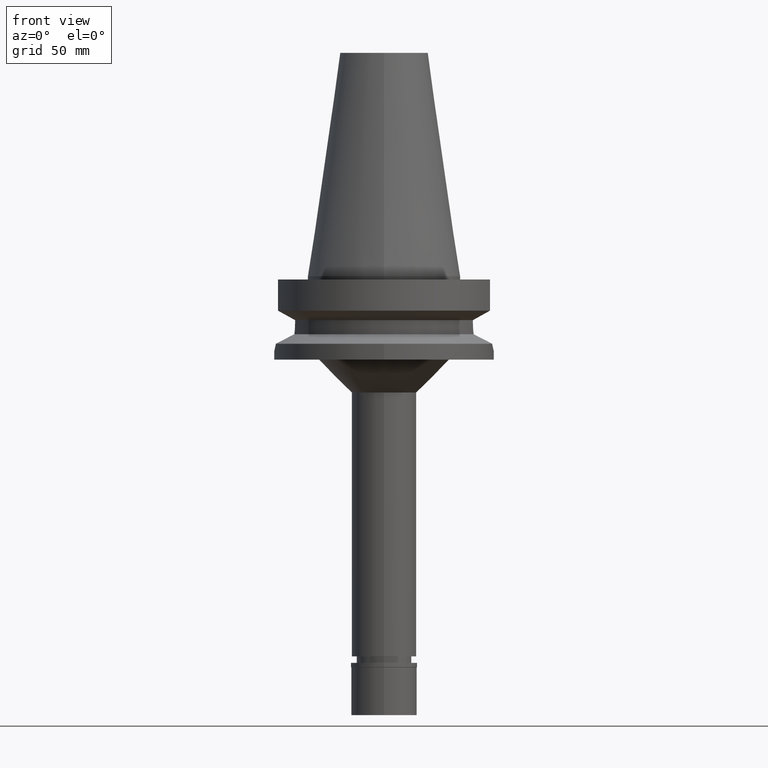
[diagram: clean part render]
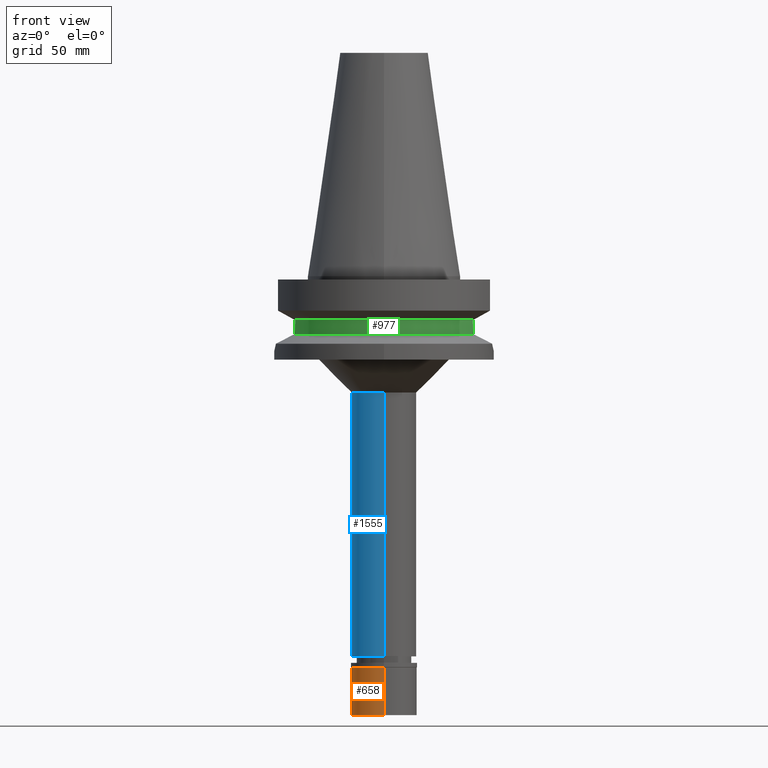
[diagram: same view with three faces highlighted in distinct colors, each labeled with its STEP entity id]
A machine part, front view with three faces highlighted in distinct colors.
Their STEP definitions:

[orange] entity #658 — the highlighted cylindrical surface (edge-blend (fillet) strip) has radius 15 mm, axis along (0, 0, -1).
#194 = CARTESIAN_POINT ( 'NONE',  ( 0.0000000000000000000, 15.00000000000000000, -2.100000000000000089 ) ) ;
#400 = EDGE_CURVE ( 'NONE', #1567, #2639, #2686, .T. ) ;
#439 = ORIENTED_EDGE ( 'NONE', *, *, #2537, .T. ) ;
#511 = AXIS2_PLACEMENT_3D ( 'NONE', #2376, #643, #1859 ) ;
#569 = CARTESIAN_POINT ( 'NONE',  ( 0.0000000000000000000, 15.00000000000000000, -2.100000000000000089 ) ) ;
#618 = CIRCLE ( 'NONE', #1018, 15.00000000000000000 ) ;
#623 = EDGE_CURVE ( 'NONE', #1567, #1048, #618, .T. ) ;
#635 = DIRECTION ( 'NONE',  ( 0.0000000000000000000, 0.0000000000000000000, -1.000000000000000000 ) ) ;
#643 = DIRECTION ( 'NONE',  ( 0.0000000000000000000, 0.0000000000000000000, 1.000000000000000000 ) ) ;
#658 = ADVANCED_FACE ( 'NONE', ( #2590 ), #1843, .T. ) ;
#817 = AXIS2_PLACEMENT_3D ( 'NONE', #2829, #635, #1607 ) ;
#910 = VECTOR ( 'NONE', #1081, 1000.000000000000000 ) ;
#1018 = AXIS2_PLACEMENT_3D ( 'NONE', #1069, #2798, #1328 ) ;
#1019 = EDGE_CURVE ( 'NONE', #2525, #2639, #2238, .T. ) ;
#1048 = VERTEX_POINT ( 'NONE', #194 ) ;
#1069 = CARTESIAN_POINT ( 'NONE',  ( 0.0000000000000000000, 0.0000000000000000000, -2.100000000000000089 ) ) ;
#1081 = DIRECTION ( 'NONE',  ( 0.0000000000000000000, 0.0000000000000000000, -1.000000000000000000 ) ) ;
#1301 = CARTESIAN_POINT ( 'NONE',  ( 0.0000000000000000000, 15.00000000000000000, -23.80000000000000071 ) ) ;
#1311 = ORIENTED_EDGE ( 'NONE', *, *, #400, .F. ) ;
#1328 = DIRECTION ( 'NONE',  ( 0.0000000000000000000, -1.000000000000000000, 0.0000000000000000000 ) ) ;
#1464 = CARTESIAN_POINT ( 'NONE',  ( 0.0000000000000000000, -15.00000000000000000, -2.100000000000000089 ) ) ;
#1567 = VERTEX_POINT ( 'NONE', #1582 ) ;
#1582 = CARTESIAN_POINT ( 'NONE',  ( 0.0000000000000000000, -15.00000000000000000, -2.100000000000000089 ) ) ;
#1607 = DIRECTION ( 'NONE',  ( 0.0000000000000000000, -1.000000000000000000, 0.0000000000000000000 ) ) ;
#1843 = CYLINDRICAL_SURFACE ( 'NONE', #817, 15.00000000000000000 ) ;
#1859 = DIRECTION ( 'NONE',  ( 0.0000000000000000000, 1.000000000000000000, 0.0000000000000000000 ) ) ;
#2041 = LINE ( 'NONE', #569, #910 ) ;
#2238 = CIRCLE ( 'NONE', #511, 15.00000000000000000 ) ;
#2270 = ORIENTED_EDGE ( 'NONE', *, *, #623, .T. ) ;
#2376 = CARTESIAN_POINT ( 'NONE',  ( 0.0000000000000000000, 0.0000000000000000000, -23.80000000000000071 ) ) ;
#2465 = DIRECTION ( 'NONE',  ( 0.0000000000000000000, 0.0000000000000000000, -1.000000000000000000 ) ) ;
#2525 = VERTEX_POINT ( 'NONE', #1301 ) ;
#2537 = EDGE_CURVE ( 'NONE', #1048, #2525, #2041, .T. ) ;
#2590 = FACE_OUTER_BOUND ( 'NONE', #2679, .T. ) ;
#2639 = VERTEX_POINT ( 'NONE', #2766 ) ;
#2679 = EDGE_LOOP ( 'NONE', ( #2808, #1311, #2270, #439 ) ) ;
#2686 = LINE ( 'NONE', #1464, #2765 ) ;
#2765 = VECTOR ( 'NONE', #2465, 1000.000000000000000 ) ;
#2766 = CARTESIAN_POINT ( 'NONE',  ( 0.0000000000000000000, -15.00000000000000000, -23.80000000000000071 ) ) ;
#2798 = DIRECTION ( 'NONE',  ( 0.0000000000000000000, 0.0000000000000000000, -1.000000000000000000 ) ) ;
#2808 = ORIENTED_EDGE ( 'NONE', *, *, #1019, .T. ) ;
#2829 = CARTESIAN_POINT ( 'NONE',  ( 0.0000000000000000000, 0.0000000000000000000, 0.0000000000000000000 ) ) ;

[blue] entity #1555 — the highlighted cylindrical surface (edge-blend (fillet) strip) has radius 14.75 mm, axis along (0, 0, -1).
#28 = CARTESIAN_POINT ( 'NONE',  ( 0.0000000000000000000, 14.75000000000000000, -53.00000000000000000 ) ) ;
#191 = DIRECTION ( 'NONE',  ( 0.0000000000000000000, 1.000000000000000000, 0.0000000000000000000 ) ) ;
#300 = EDGE_LOOP ( 'NONE', ( #2939, #785, #3036, #2100 ) ) ;
#369 = EDGE_CURVE ( 'NONE', #532, #979, #953, .T. ) ;
#532 = VERTEX_POINT ( 'NONE', #2285 ) ;
#603 = DIRECTION ( 'NONE',  ( 0.0000000000000000000, -1.000000000000000000, 0.0000000000000000000 ) ) ;
#785 = ORIENTED_EDGE ( 'NONE', *, *, #2441, .F. ) ;
#953 = LINE ( 'NONE', #28, #3073 ) ;
#979 = VERTEX_POINT ( 'NONE', #3022 ) ;
#988 = DIRECTION ( 'NONE',  ( 0.0000000000000000000, 0.0000000000000000000, -1.000000000000000000 ) ) ;
#1104 = CARTESIAN_POINT ( 'NONE',  ( 0.0000000000000000000, -14.75000000000000000, -53.00000000000000000 ) ) ;
#1115 = VERTEX_POINT ( 'NONE', #1357 ) ;
#1314 = LINE ( 'NONE', #2538, #2298 ) ;
#1357 = CARTESIAN_POINT ( 'NONE',  ( 0.0000000000000000000, -14.75000000000000000, -173.1999999999999886 ) ) ;
#1520 = DIRECTION ( 'NONE',  ( 0.0000000000000000000, 0.0000000000000000000, -1.000000000000000000 ) ) ;
#1536 = VERTEX_POINT ( 'NONE', #1104 ) ;
#1555 = ADVANCED_FACE ( 'NONE', ( #2085 ), #1603, .T. ) ;
#1603 = CYLINDRICAL_SURFACE ( 'NONE', #2307, 14.75000000000000000 ) ;
#1639 = DIRECTION ( 'NONE',  ( 0.0000000000000000000, 0.0000000000000000000, 1.000000000000000000 ) ) ;
#1737 = CIRCLE ( 'NONE', #2925, 14.75000000000000000 ) ;
#2030 = DIRECTION ( 'NONE',  ( 0.0000000000000000000, -1.000000000000000000, 0.0000000000000000000 ) ) ;
#2085 = FACE_OUTER_BOUND ( 'NONE', #300, .T. ) ;
#2100 = ORIENTED_EDGE ( 'NONE', *, *, #369, .T. ) ;
#2281 = DIRECTION ( 'NONE',  ( 0.0000000000000000000, 0.0000000000000000000, -1.000000000000000000 ) ) ;
#2285 = CARTESIAN_POINT ( 'NONE',  ( 0.0000000000000000000, 14.75000000000000000, -53.00000000000000000 ) ) ;
#2298 = VECTOR ( 'NONE', #3065, 1000.000000000000000 ) ;
#2307 = AXIS2_PLACEMENT_3D ( 'NONE', #2588, #2281, #2030 ) ;
#2441 = EDGE_CURVE ( 'NONE', #1536, #1115, #1314, .T. ) ;
#2510 = AXIS2_PLACEMENT_3D ( 'NONE', #3111, #1639, #191 ) ;
#2538 = CARTESIAN_POINT ( 'NONE',  ( 0.0000000000000000000, -14.75000000000000000, -53.00000000000000000 ) ) ;
#2588 = CARTESIAN_POINT ( 'NONE',  ( 0.0000000000000000000, 2.650013208674999776E-14, 116.3899999999999864 ) ) ;
#2698 = EDGE_CURVE ( 'NONE', #979, #1115, #2875, .T. ) ;
#2802 = CARTESIAN_POINT ( 'NONE',  ( 0.0000000000000000000, 0.0000000000000000000, -53.00000000000000000 ) ) ;
#2875 = CIRCLE ( 'NONE', #2510, 14.75000000000000000 ) ;
#2925 = AXIS2_PLACEMENT_3D ( 'NONE', #2802, #1520, #603 ) ;
#2939 = ORIENTED_EDGE ( 'NONE', *, *, #2698, .T. ) ;
#2965 = EDGE_CURVE ( 'NONE', #1536, #532, #1737, .T. ) ;
#3022 = CARTESIAN_POINT ( 'NONE',  ( 0.0000000000000000000, 14.75000000000000000, -173.1999999999999886 ) ) ;
#3036 = ORIENTED_EDGE ( 'NONE', *, *, #2965, .T. ) ;
#3065 = DIRECTION ( 'NONE',  ( 0.0000000000000000000, 0.0000000000000000000, -1.000000000000000000 ) ) ;
#3073 = VECTOR ( 'NONE', #988, 1000.000000000000000 ) ;
#3111 = CARTESIAN_POINT ( 'NONE',  ( 0.0000000000000000000, 2.650013208674999776E-14, -173.1999999999999886 ) ) ;

[green] entity #977 — the highlighted cylindrical surface (partial cylindrical patch) has radius 42.5 mm, axis along (0, 0, -1).
#48 = CARTESIAN_POINT ( 'NONE',  ( -40.51083297203000200, -12.84999657244999938, -19.99284555869999735 ) ) ;
#88 = DIRECTION ( 'NONE',  ( 0.0000000000000000000, -1.000000000000000000, 0.0000000000000000000 ) ) ;
#181 = LINE ( 'NONE', #416, #215 ) ;
#215 = VECTOR ( 'NONE', #872, 1000.000000000000000 ) ;
#285 = VERTEX_POINT ( 'NONE', #2942 ) ;
#286 = EDGE_CURVE ( 'NONE', #285, #558, #2175, .T. ) ;
#296 = DIRECTION ( 'NONE',  ( -9.390344904618780601E-07, -2.960396942957935590E-06, -0.9999999999951771912 ) ) ;
#349 = CARTESIAN_POINT ( 'NONE',  ( 40.51083188481999997, -12.84999999999999964, -21.14999999999999858 ) ) ;
#357 = DIRECTION ( 'NONE',  ( 0.0000000000000000000, 0.0000000000000000000, -1.000000000000000000 ) ) ;
#416 = CARTESIAN_POINT ( 'NONE',  ( -40.51083188481999997, -12.84999999999999964, -21.14999999999999858 ) ) ;
#419 = CARTESIAN_POINT ( 'NONE',  ( -40.74530521662885718, -12.08734525798915982, -25.53455946907622476 ) ) ;
#438 = CARTESIAN_POINT ( 'NONE',  ( -40.60613812303880366, -12.54578004799953739, -23.92968102609992087 ) ) ;
#454 = CARTESIAN_POINT ( 'NONE',  ( 40.51818672788440523, -12.82722302283193727, -22.03685123483841934 ) ) ;
#461 = CIRCLE ( 'NONE', #2233, 42.50000000000000000 ) ;
#498 = ORIENTED_EDGE ( 'NONE', *, *, #1014, .F. ) ;
#518 = VERTEX_POINT ( 'NONE', #1815 ) ;
#558 = VERTEX_POINT ( 'NONE', #349 ) ;
#600 = EDGE_CURVE ( 'NONE', #2564, #518, #461, .T. ) ;
#696 = CARTESIAN_POINT ( 'NONE',  ( 40.51083188481999997, -12.84999999999999964, -21.14999999999999858 ) ) ;
#698 = CARTESIAN_POINT ( 'NONE',  ( -40.63720027270115054, -12.44499102499862353, -24.35263434040134101 ) ) ;
#757 = CARTESIAN_POINT ( 'NONE',  ( 40.59736304646016691, -12.57413740470731867, -23.79844990304463437 ) ) ;
#834 = CARTESIAN_POINT ( 'NONE',  ( 0.0000000000000000000, 1.006319759053999930E-14, -19.99281925464999787 ) ) ;
#853 = DIRECTION ( 'NONE',  ( 0.9531960443486575674, -0.3023529411764863672, 0.0000000000000000000 ) ) ;
#872 = DIRECTION ( 'NONE',  ( -9.395584592291728626E-07, 2.962048808702914309E-06, 0.9999999999951717511 ) ) ;
#913 = CARTESIAN_POINT ( 'NONE',  ( -40.79434733663808998, -11.92110265459549190, -25.97065107317780530 ) ) ;
#946 = VERTEX_POINT ( 'NONE', #48 ) ;
#977 = ADVANCED_FACE ( 'NONE', ( #1511 ), #1990, .T. ) ;
#997 = CARTESIAN_POINT ( 'NONE',  ( 40.73816446295314364, -12.11684043061257832, -25.53408629900068405 ) ) ;
#1000 = CARTESIAN_POINT ( 'NONE',  ( 40.51083297143000550, -12.84999657435999865, -19.99284554403000058 ) ) ;
#1009 = CARTESIAN_POINT ( 'NONE',  ( 40.58662124421020678, -12.60879381993913562, -23.62921300446890882 ) ) ;
#1014 = EDGE_CURVE ( 'NONE', #1023, #946, #181, .T. ) ;
#1023 = VERTEX_POINT ( 'NONE', #2586 ) ;
#1033 = CARTESIAN_POINT ( 'NONE',  ( 40.59187880780699942, -12.59183787880530581, -23.71299268442448849 ) ) ;
#1064 = CARTESIAN_POINT ( 'NONE',  ( 0.0000000000000000000, 2.650013208674999776E-14, 116.3899999999999864 ) ) ;
#1106 = CARTESIAN_POINT ( 'NONE',  ( 0.0000000000000000000, 0.0000000000000000000, -26.40718074535000426 ) ) ;
#1156 = B_SPLINE_CURVE_WITH_KNOTS ( 'NONE', 3,
 ( #696, #2151, #454, #2912, #2474, #2241, #1293, #1009, #1033, #2724, #757, #1270, #997, #2225 ),
 .UNSPECIFIED., .F., .F.,
 ( 4, 2, 2, 1, 1, 2, 2, 4 ),
 ( 0.0000000000000000000, 0.2499999999999936162, 0.3749999999999913958, 0.4374999999999893974, 0.4687499999999873990, 0.4843749999999864553, 0.4999999999999855116, 1.000000000000000000 ),
 .UNSPECIFIED. ) ;
#1196 = ORIENTED_EDGE ( 'NONE', *, *, #1279, .F. ) ;
#1236 = EDGE_LOOP ( 'NONE', ( #1497, #2723, #1196, #1303, #2006, #498 ) ) ;
#1270 = CARTESIAN_POINT ( 'NONE',  ( 40.65435256583740653, -12.39003828017199460, -24.66355282957688289 ) ) ;
#1279 = EDGE_CURVE ( 'NONE', #558, #518, #1156, .T. ) ;
#1293 = CARTESIAN_POINT ( 'NONE',  ( 40.57495692278773447, -12.64634763150114161, -23.43364197066474119 ) ) ;
#1303 = ORIENTED_EDGE ( 'NONE', *, *, #286, .F. ) ;
#1402 = CARTESIAN_POINT ( 'NONE',  ( -40.60257244295533496, -12.55730800210175779, -23.87713024257998740 ) ) ;
#1414 = CARTESIAN_POINT ( 'NONE',  ( -40.51083188481999287, -12.84999999999998721, -22.03309742078719324 ) ) ;
#1497 = ORIENTED_EDGE ( 'NONE', *, *, #1646, .F. ) ;
#1511 = FACE_OUTER_BOUND ( 'NONE', #1236, .T. ) ;
#1638 = AXIS2_PLACEMENT_3D ( 'NONE', #1064, #357, #2045 ) ;
#1644 = CARTESIAN_POINT ( 'NONE',  ( -40.61157027093302929, -12.52820949424839547, -24.00859467746296261 ) ) ;
#1646 = EDGE_CURVE ( 'NONE', #2564, #1023, #2727, .T. ) ;
#1672 = CARTESIAN_POINT ( 'NONE',  ( -40.62483067706965301, -12.48524489601429188, -24.19332376315256639 ) ) ;
#1815 = CARTESIAN_POINT ( 'NONE',  ( 40.85052569294000335, -11.72538061688000077, -26.40718074535000426 ) ) ;
#1817 = DIRECTION ( 'NONE',  ( 0.0000000000000000000, 0.0000000000000000000, -1.000000000000000000 ) ) ;
#1883 = CARTESIAN_POINT ( 'NONE',  ( -40.85052569294000335, -11.72538061688000077, -26.40718074535000426 ) ) ;
#1901 = CARTESIAN_POINT ( 'NONE',  ( -40.54025138676031048, -12.75862549540203794, -22.93152005439002750 ) ) ;
#1990 = CYLINDRICAL_SURFACE ( 'NONE', #1638, 42.50000000000000000 ) ;
#2006 = ORIENTED_EDGE ( 'NONE', *, *, #2487, .T. ) ;
#2016 = DIRECTION ( 'NONE',  ( 0.0000000000000000000, 0.0000000000000000000, 1.000000000000000000 ) ) ;
#2045 = DIRECTION ( 'NONE',  ( 0.0000000000000000000, -1.000000000000000000, 0.0000000000000000000 ) ) ;
#2060 = CARTESIAN_POINT ( 'NONE',  ( -40.85052569294000335, -11.72538061688000077, -26.40718074535000426 ) ) ;
#2151 = CARTESIAN_POINT ( 'NONE',  ( 40.51083188482000708, -12.84999999999999787, -21.59153425996890618 ) ) ;
#2175 = LINE ( 'NONE', #1000, #2713 ) ;
#2225 = CARTESIAN_POINT ( 'NONE',  ( 40.85052569294000335, -11.72538061688000077, -26.40718074535000426 ) ) ;
#2233 = AXIS2_PLACEMENT_3D ( 'NONE', #1106, #2016, #88 ) ;
#2241 = CARTESIAN_POINT ( 'NONE',  ( 40.56599320780301809, -12.67510280107321741, -23.26591223435680433 ) ) ;
#2348 = CARTESIAN_POINT ( 'NONE',  ( -40.68244639105407146, -12.29666286613858084, -24.88711474769678844 ) ) ;
#2378 = CARTESIAN_POINT ( 'NONE',  ( -40.60092910951220091, -12.56261850439631722, -23.85257851100598003 ) ) ;
#2450 = AXIS2_PLACEMENT_3D ( 'NONE', #834, #1817, #853 ) ;
#2474 = CARTESIAN_POINT ( 'NONE',  ( 40.54944481090809205, -12.72806977530010464, -22.93044999935162664 ) ) ;
#2487 = EDGE_CURVE ( 'NONE', #285, #946, #2825, .T. ) ;
#2564 = VERTEX_POINT ( 'NONE', #2060 ) ;
#2586 = CARTESIAN_POINT ( 'NONE',  ( -40.51083188481999997, -12.84999999999999964, -21.14999999999999858 ) ) ;
#2713 = VECTOR ( 'NONE', #296, 1000.000000000000114 ) ;
#2723 = ORIENTED_EDGE ( 'NONE', *, *, #600, .T. ) ;
#2724 = CARTESIAN_POINT ( 'NONE',  ( 40.59544130991633182, -12.58034215982217674, -23.76883634622906882 ) ) ;
#2727 = B_SPLINE_CURVE_WITH_KNOTS ( 'NONE', 3,
 ( #1883, #913, #419, #2348, #2915, #698, #1672, #1644, #438, #1402, #2378, #1901, #1414, #2867 ),
 .UNSPECIFIED., .F., .F.,
 ( 4, 2, 2, 1, 1, 2, 2, 4 ),
 ( 0.0000000000000000000, 0.2500000000000097700, 0.3750000000000154321, 0.4375000000000180966, 0.4687500000000194289, 0.4843750000000190403, 0.5000000000000186517, 1.000000000000000000 ),
 .UNSPECIFIED. ) ;
#2825 = CIRCLE ( 'NONE', #2450, 42.50000000000002132 ) ;
#2867 = CARTESIAN_POINT ( 'NONE',  ( -40.51083188481999997, -12.84999999999999964, -21.14999999999999858 ) ) ;
#2912 = CARTESIAN_POINT ( 'NONE',  ( 40.54025125707759258, -12.75732221048092541, -22.70680567686559925 ) ) ;
#2915 = CARTESIAN_POINT ( 'NONE',  ( -40.66327750826899745, -12.35976744502590563, -24.67240287692017375 ) ) ;
#2942 = CARTESIAN_POINT ( 'NONE',  ( 40.51083188481999997, -12.84999999999999964, -19.99281925464999787 ) ) ;